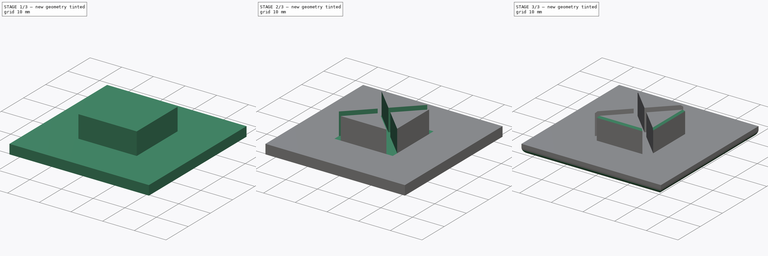
[diagram: build sequence overview — one tinted view per stage of 3, left to right]
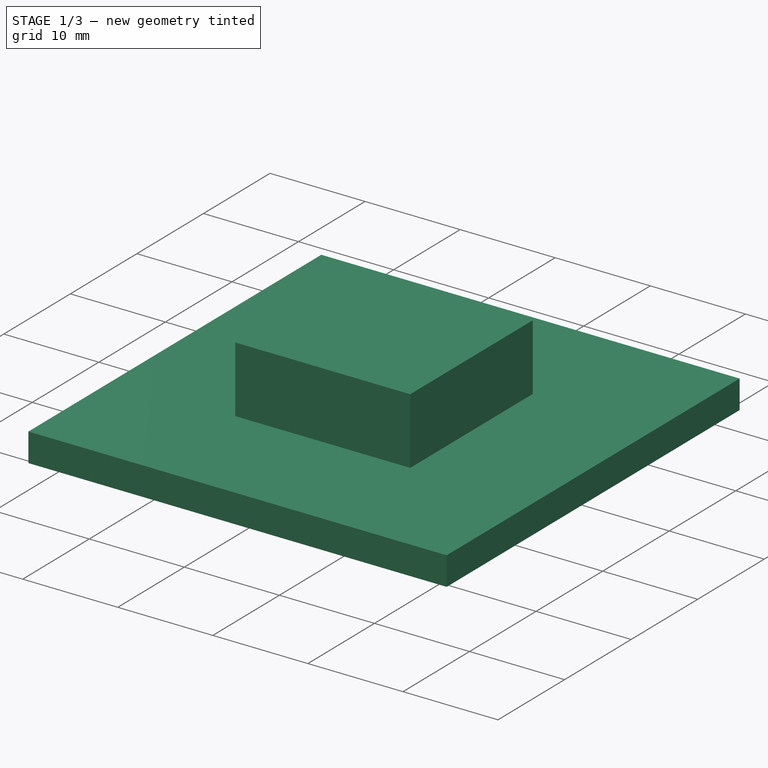
[diagram: stage 1 of 3 — iso view after this stage's code; geometry added in this stage tinted green]
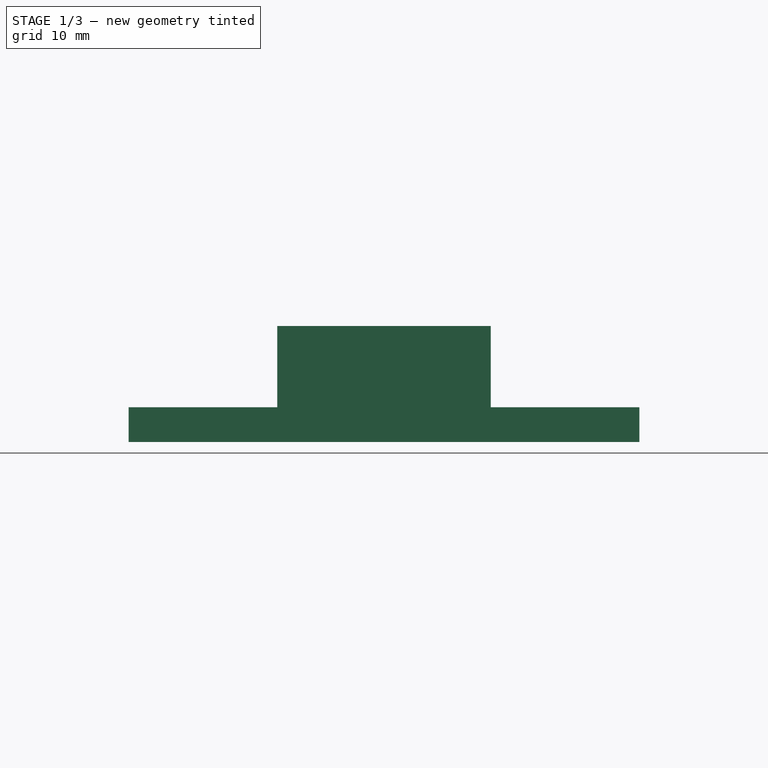
[diagram: stage 1 of 3 — front view after this stage's code; geometry added in this stage tinted green]
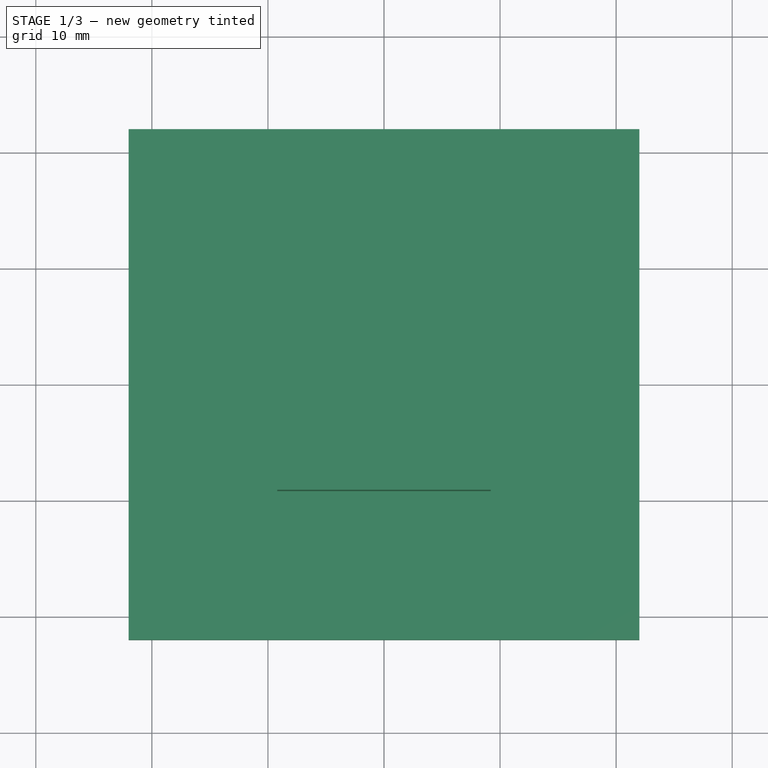
[diagram: stage 1 of 3 — top view after this stage's code; geometry added in this stage tinted green]
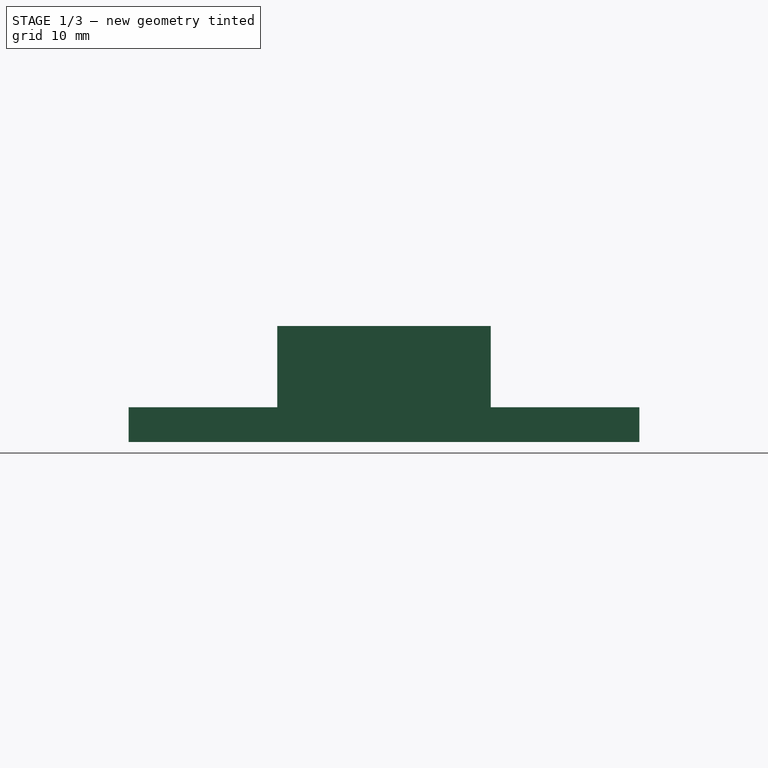
[diagram: stage 1 of 3 — right view after this stage's code; geometry added in this stage tinted green]
FCSTD DOCUMENT  (FreeCAD 0.19R24366 (Git))
Label: FlexLink End Cap
License: All rights reserved
LicenseURL: http://en.wikipedia.org/wiki/All_rights_reserved
objects: Sketcher::SketchObject×3, PartDesign::Pad×2, PartDesign::Pocket×1, PartDesign::Fillet×1, PartDesign::Chamfer×1, PartDesign::Body×1
note: 14 computed .brp shape members not serialized (recipe doc carries the construction recipe); baked Part::Feature solids carry a one-line shape summary decoded from their .brp

FEATURE [Sketcher::SketchObject] Sketch
  FullyConstrained = true
  MapMode = 5
  Support = -> [XY_Plane]
  sketch-geometry (4):
    g0: LineSegment StartX=-22 StartY=22 StartZ=0 EndX=22 EndY=22 EndZ=0
    g1: LineSegment StartX=22 StartY=22 StartZ=0 EndX=22 EndY=-22 EndZ=0
    g2: LineSegment StartX=22 StartY=-22 StartZ=0 EndX=-22 EndY=-22 EndZ=0
    g3: LineSegment StartX=-22 StartY=-22 StartZ=0 EndX=-22 EndY=22 EndZ=0
  constraints (11):
    c: Coincident(g0,g1)
    c: Coincident(g1,g2)
    c: Coincident(g2,g3)
    c: Coincident(g3,g0)
    c: Horizontal(g0)
    c: Horizontal(g2)
    c: Vertical(g1)
    c: Vertical(g3)
    c: Symmetric(g0,g2,g-1)
    c: DistanceX(g0,g0) = 44
    c: DistanceY(g1,g1) = 44
FEATURE [PartDesign::Pad] Pad  label="Base"
  Direction = (1,1,1)
  Length = 3
  Length2 = 100
  Profile = -> Sketch
  Type = 0
FEATURE [Sketcher::SketchObject] Sketch001
  FullyConstrained = true
  MapMode = 5
  Placement = pos=(0,0,3) rot=(0,0,1;0rad)
  Support = -> [Pad]
  sketch-geometry (4):
    g0: LineSegment StartX=-9.2 StartY=9.2 StartZ=0 EndX=9.2 EndY=9.2 EndZ=0
    g1: LineSegment StartX=9.2 StartY=9.2 StartZ=0 EndX=9.2 EndY=-9.2 EndZ=0
    g2: LineSegment StartX=9.2 StartY=-9.2 StartZ=0 EndX=-9.2 EndY=-9.2 EndZ=0
    g3: LineSegment StartX=-9.2 StartY=-9.2 StartZ=0 EndX=-9.2 EndY=9.2 EndZ=0
  constraints (11):
    c: Coincident(g0,g1)
    c: Coincident(g1,g2)
    c: Coincident(g2,g3)
    c: Coincident(g3,g0)
    c: Horizontal(g0)
    c: Horizontal(g2)
    c: Vertical(g1)
    c: Vertical(g3)
    c: Symmetric(g0,g2,g-1)
    c: DistanceX(g0,g0) = 18.4
    c: DistanceY(g1,g1) = 18.4
FEATURE [PartDesign::Pad] Pad001  label="Clip Extrusion"
  BaseFeature = -> Pad
  Direction = (1,1,1)
  Length = 7
  Length2 = 100
  Profile = -> Sketch001
  Type = 0
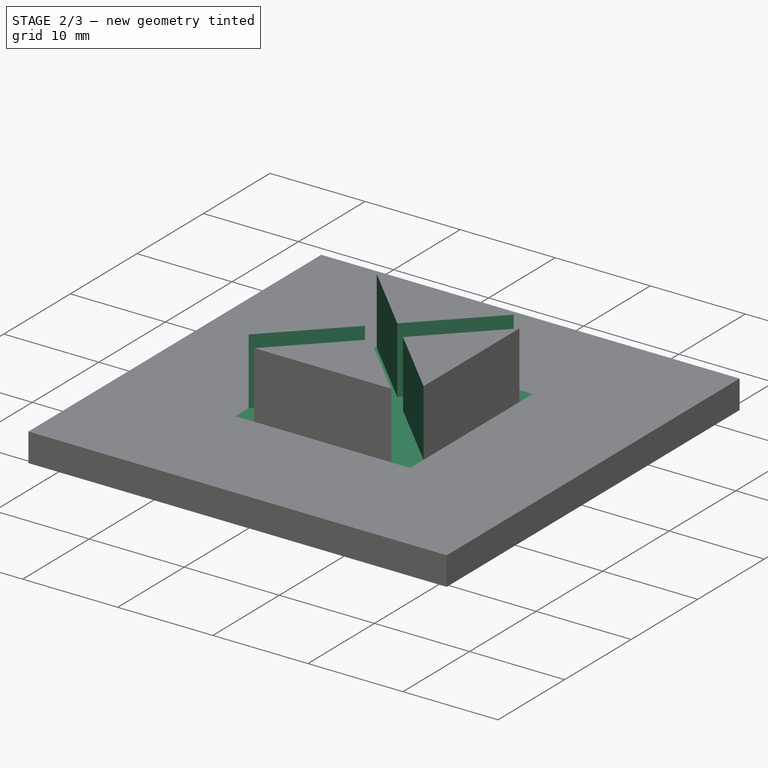
[diagram: stage 2 of 3 — iso view after this stage's code; geometry added in this stage tinted green]
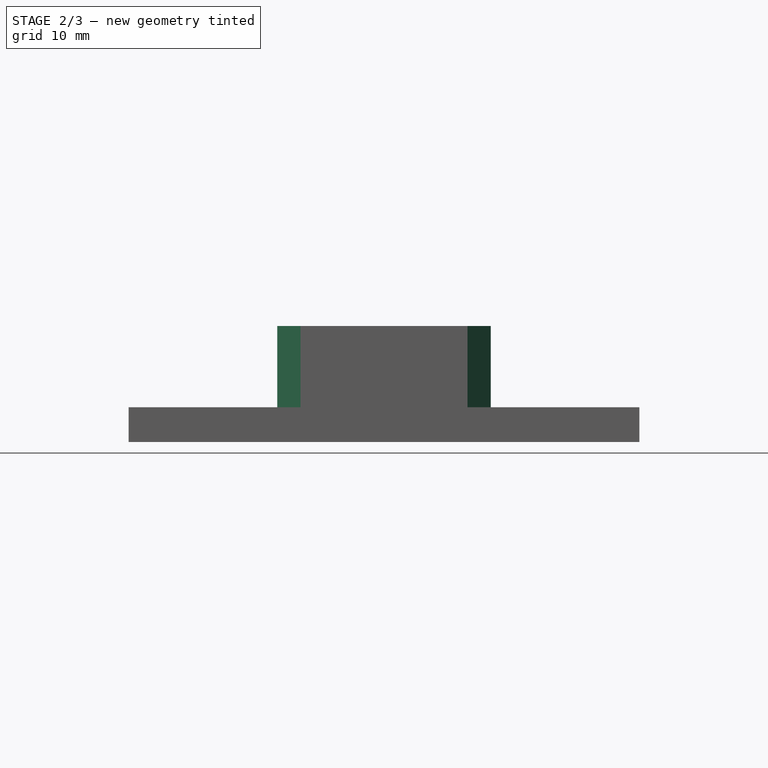
[diagram: stage 2 of 3 — front view after this stage's code; geometry added in this stage tinted green]
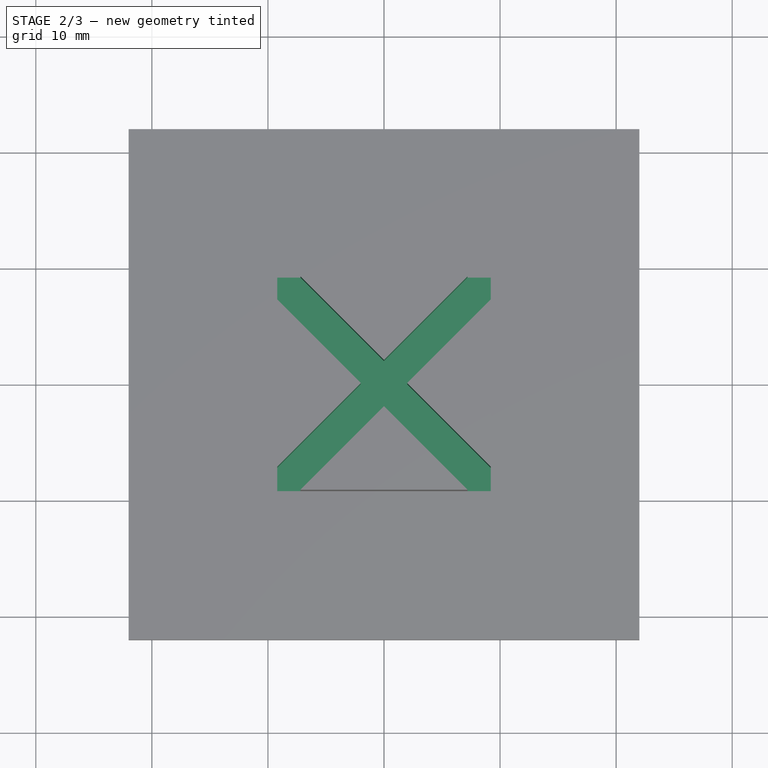
[diagram: stage 2 of 3 — top view after this stage's code; geometry added in this stage tinted green]
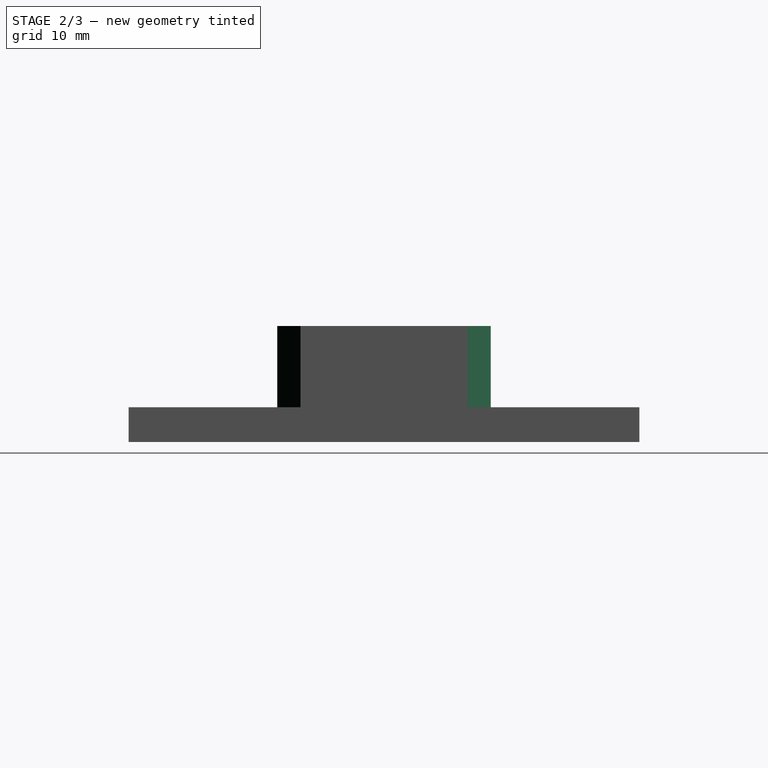
[diagram: stage 2 of 3 — right view after this stage's code; geometry added in this stage tinted green]
FEATURE [Sketcher::SketchObject] Sketch002
  ExternalGeometry = -> [Pad001]
  FullyConstrained = true
  MapMode = 5
  Placement = pos=(0,0,10) rot=(0,0,1;0rad)
  Support = -> [Pad001]
  sketch-geometry (23):
    g0: GeomPoint X=-2 Y=9e-16 Z=0
    g1: GeomPoint X=0 Y=2 Z=0
    g2: GeomPoint X=-9.2 Y=7.2 Z=0
    g3: GeomPoint X=-7.2 Y=9.2 Z=0
    g4: LineSegment StartX=-9.2 StartY=7.2 StartZ=0 EndX=-2 EndY=0 EndZ=0
    g5: LineSegment StartX=-7.2 StartY=9.2 StartZ=0 EndX=0 EndY=2 EndZ=0
    g6: LineSegment StartX=-9.2 StartY=7.2 StartZ=0 EndX=-9.2 EndY=9.2 EndZ=0
    g7: LineSegment StartX=-9.2 StartY=9.2 StartZ=0 EndX=-7.2 EndY=9.2 EndZ=0
    g8: GeomPoint X=9.2 Y=7.2 Z=0
    g9: GeomPoint X=7.2 Y=-9.2 Z=0
    g10: GeomPoint X=-9.2 Y=-7.2 Z=0
    g11: LineSegment StartX=-9.2 StartY=-7.2 StartZ=0 EndX=-2 EndY=9e-16 EndZ=0
    g12: LineSegment StartX=-7.2 StartY=-9.2 StartZ=0 EndX=0 EndY=-2 EndZ=0
    g13: LineSegment StartX=0 StartY=-2 StartZ=0 EndX=7.2 EndY=-9.2 EndZ=0
    g14: LineSegment StartX=9.2 StartY=-7.2 StartZ=0 EndX=2 EndY=9e-16 EndZ=0
    g15: LineSegment StartX=2 StartY=9e-16 StartZ=0 EndX=9.2 EndY=7.2 EndZ=0
    g16: LineSegment StartX=7.2 StartY=9.2 StartZ=0 EndX=0 EndY=2 EndZ=0
    g17: LineSegment StartX=-9.2 StartY=-7.2 StartZ=0 EndX=-9.2 EndY=-9.2 EndZ=0
    g18: LineSegment StartX=-9.2 StartY=-9.2 StartZ=0 EndX=-7.2 EndY=-9.2 EndZ=0
    g19: LineSegment StartX=7.2 StartY=-9.2 StartZ=0 EndX=9.2 EndY=-9.2 EndZ=0
    g20: LineSegment StartX=9.2 StartY=-9.2 StartZ=0 EndX=9.2 EndY=-7.2 EndZ=0
    g21: LineSegment StartX=9.2 StartY=7.2 StartZ=0 EndX=9.2 EndY=9.2 EndZ=0
    g22: LineSegment StartX=9.2 StartY=9.2 StartZ=0 EndX=7.2 EndY=9.2 EndZ=0
  constraints (51):
    c: PointOnObject(g0,g-1)
    c: PointOnObject(g1,g-2)
    c: Distance(g-1,g1) = 2
    c: Distance(g-1,g0) = 2
    c: PointOnObject(g2,g-3)
    c: PointOnObject(g3,g-4)
    c: DistanceX(g-4,g3) = 2
    c: DistanceY(g2,g-4) = 2
    c: Coincident(g4,g2)
    c: Coincident(g4,g0)
    c: Coincident(g5,g3)
    c: Coincident(g5,g1)
    c: Coincident(g6,g4)
    c: Coincident(g6,g-4)
    c: Coincident(g7,g5)
    c: Coincident(g7,g6)
    c: PointOnObject(g8,g-5)
    c: PointOnObject(g9,g-6)
    c: PointOnObject(g10,g-3)
    c: Coincident(g11,g10)
    c: Coincident(g11,g4)
    c: PointOnObject(g12,g-2)
    c: Coincident(g13,g12)
    c: Coincident(g13,g9)
    c: PointOnObject(g14,g-1)
    c: Coincident(g15,g14)
    c: Coincident(g15,g8)
    c: Coincident(g16,g5)
    c: Coincident(g17,g11)
    c: Coincident(g17,g-6)
    c: Coincident(g18,g17)
    c: Coincident(g18,g12)
    c: Horizontal(g18)
    c: Coincident(g19,g13)
    c: Coincident(g19,g-6)
    c: Coincident(g20,g19)
    c: Coincident(g20,g14)
    c: Vertical(g20)
    c: Coincident(g21,g15)
    c: Coincident(g21,g-5)
    c: Coincident(g22,g21)
    c: Coincident(g22,g16)
    c: DistanceX(g18,g18) = 2
    c: DistanceX(g19,g19) = 2
    c: DistanceX(g22,g22) = 2
    c: DistanceY(g21,g21) = 2
    c: DistanceY(g20,g20) = 2
    c: DistanceY(g17,g17) = 2
    c: DistanceY(g12,g-1) = 2
    c: DistanceX(g-1,g14) = 2
    c: PointOnObject(g16,g-4)
FEATURE [PartDesign::Pocket] Pocket  label="Clip Cross Pocket"
  BaseFeature = -> Pad001
  Length = 7
  Length2 = 100
  Profile = -> Sketch002
  Type = 0
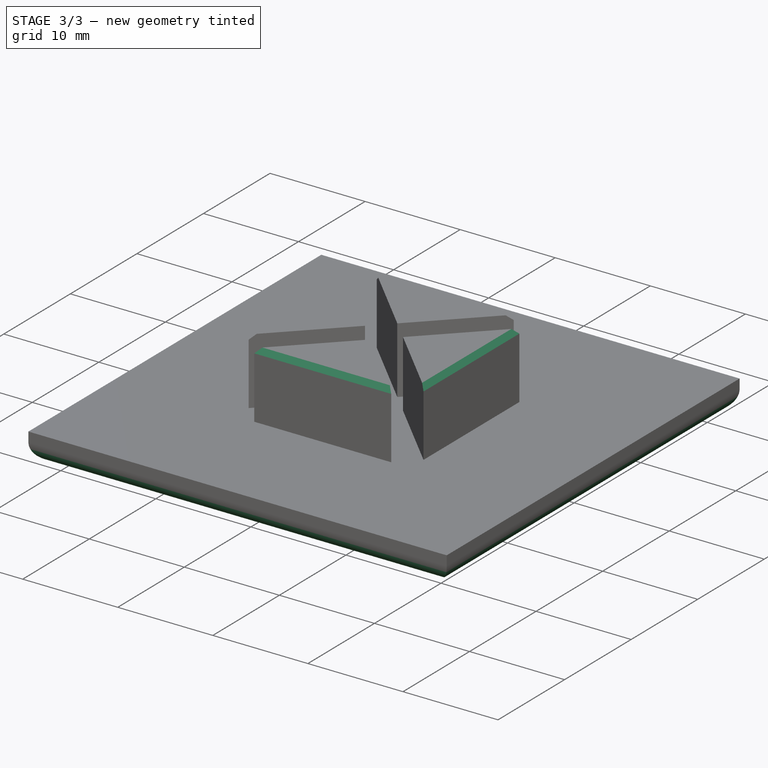
[diagram: stage 3 of 3 — iso view after this stage's code; geometry added in this stage tinted green]
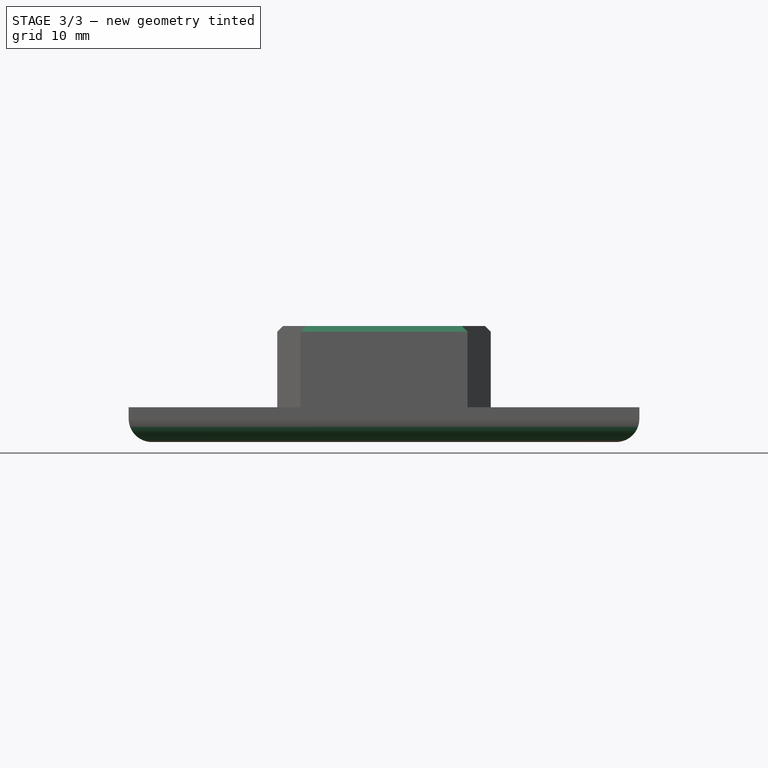
[diagram: stage 3 of 3 — front view after this stage's code; geometry added in this stage tinted green]
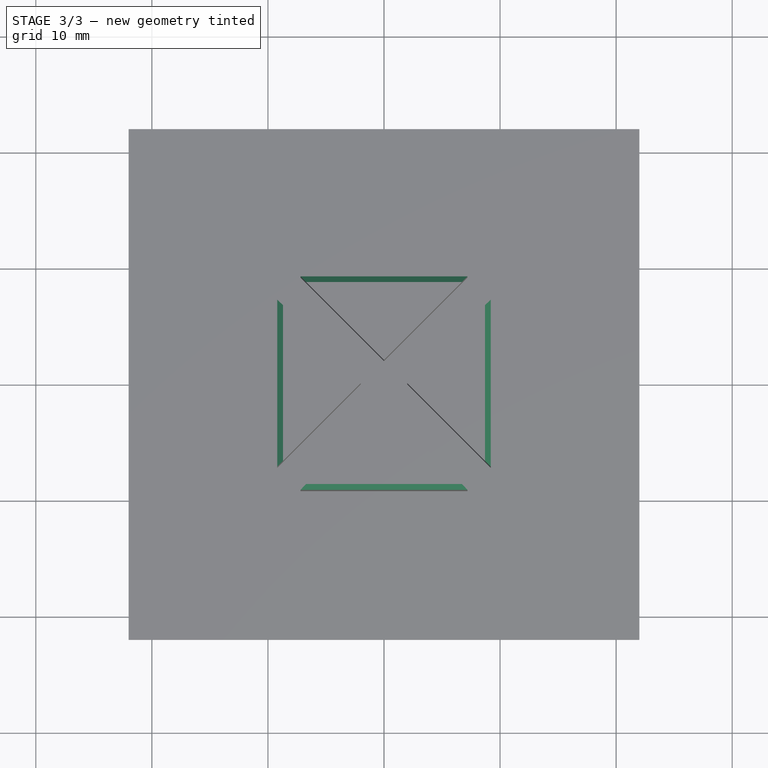
[diagram: stage 3 of 3 — top view after this stage's code; geometry added in this stage tinted green]
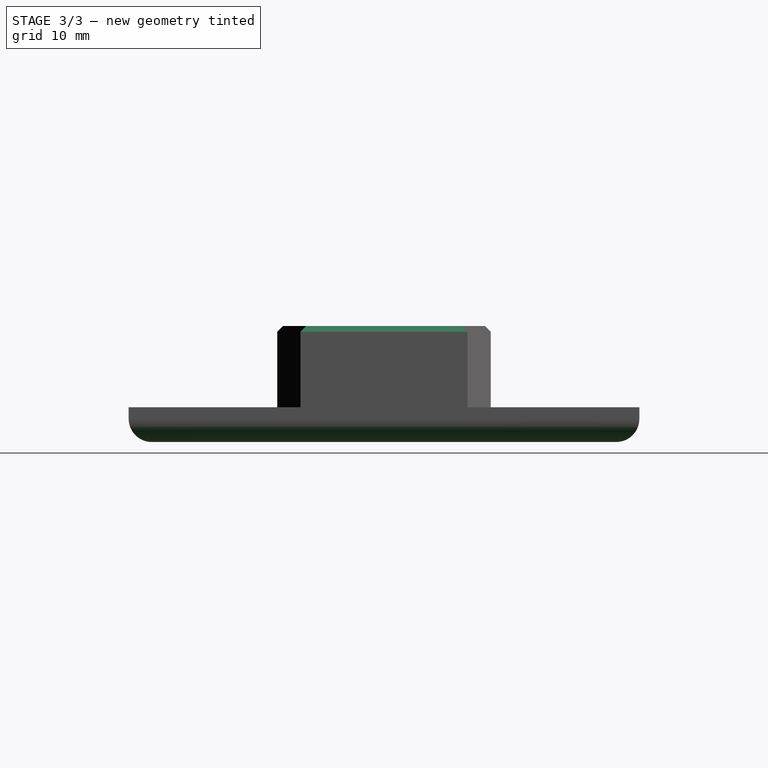
[diagram: stage 3 of 3 — right view after this stage's code; geometry added in this stage tinted green]
FEATURE [PartDesign::Fillet] Fillet  label="Edge Fillet"
  Base = -> Pocket [Edge11,Edge6,Edge3,Edge9]
  BaseFeature = -> Pocket
  Radius = 2
  SupportTransform = false
FEATURE [PartDesign::Chamfer] Chamfer  label="Triangle Chamfer"
  Angle = 45
  Base = -> Fillet [Edge42,Edge51,Edge48,Edge45]
  BaseFeature = -> Fillet
  ChamferType = 0
  FlipDirection = false
  Size = 0.5
  Size2 = 1
  SupportTransform = false
FEATURE [PartDesign::Body] Body
  Group = -> [Sketch,Pad,Sketch001,Pad001,Sketch002,Pocket,Fillet,Chamfer]
  Origin = -> Origin
  Tip = -> Chamfer
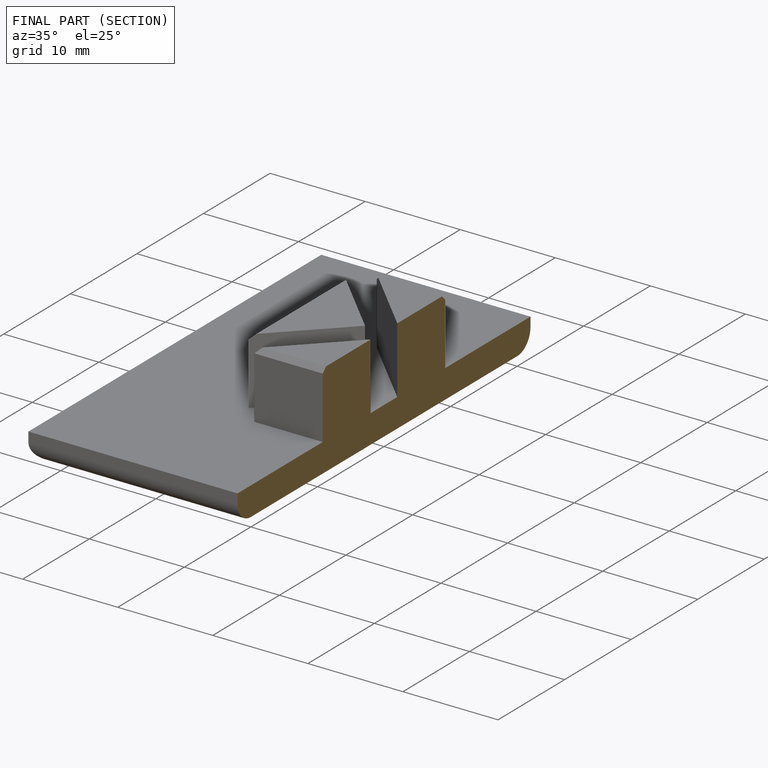
[diagram: finished part — half-section view (interior)]
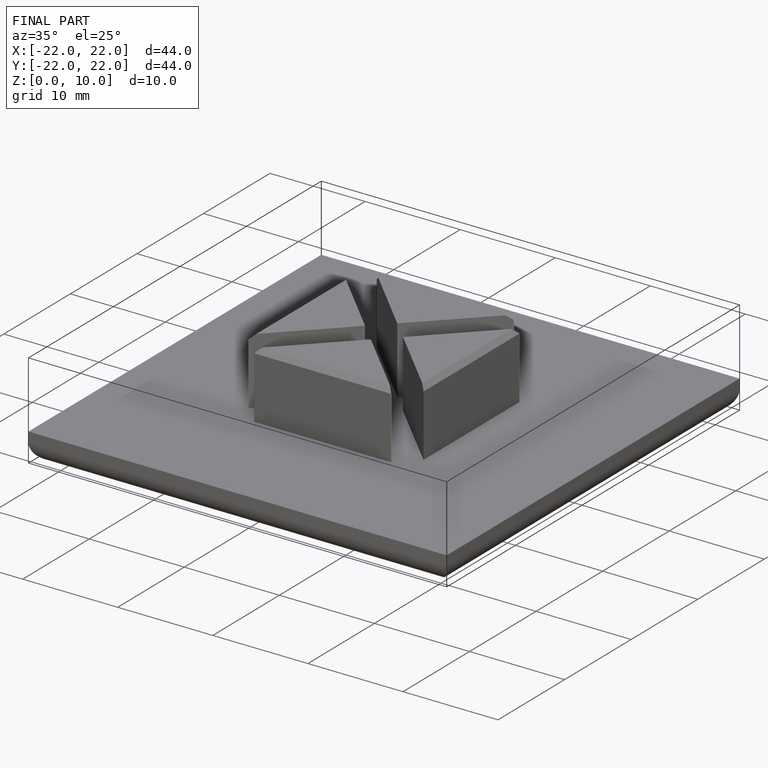
[diagram: finished part — iso view with bounding-box wireframe]
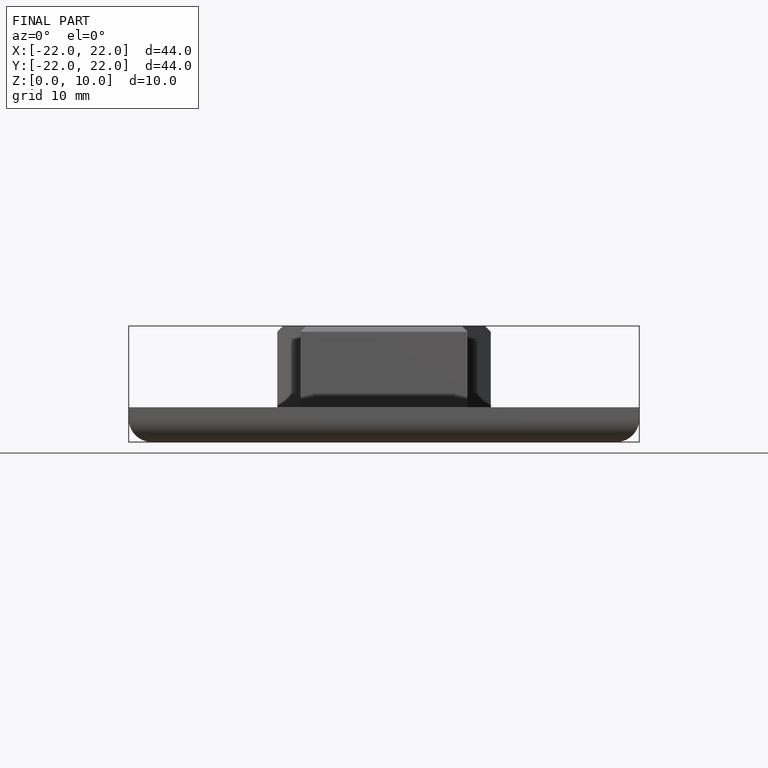
[diagram: finished part — front view with bounding-box wireframe]
